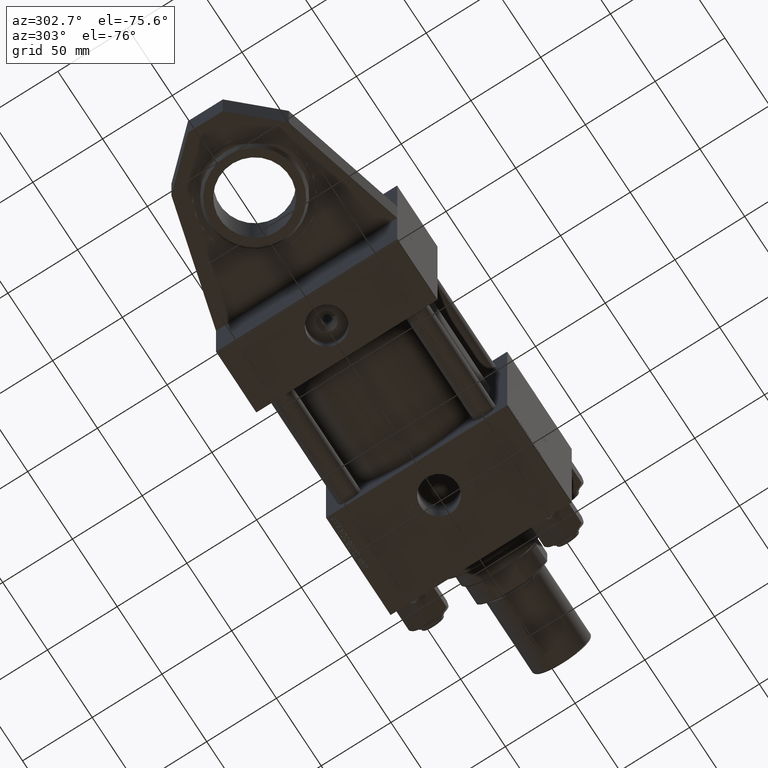
[diagram: clean part render]
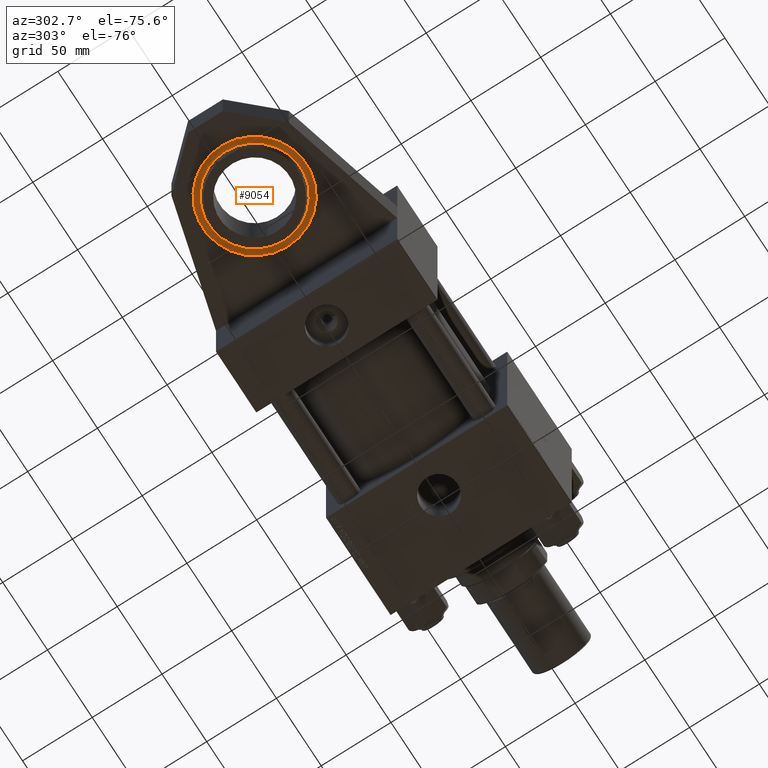
[diagram: same view with one face highlighted and labeled with its STEP entity id]
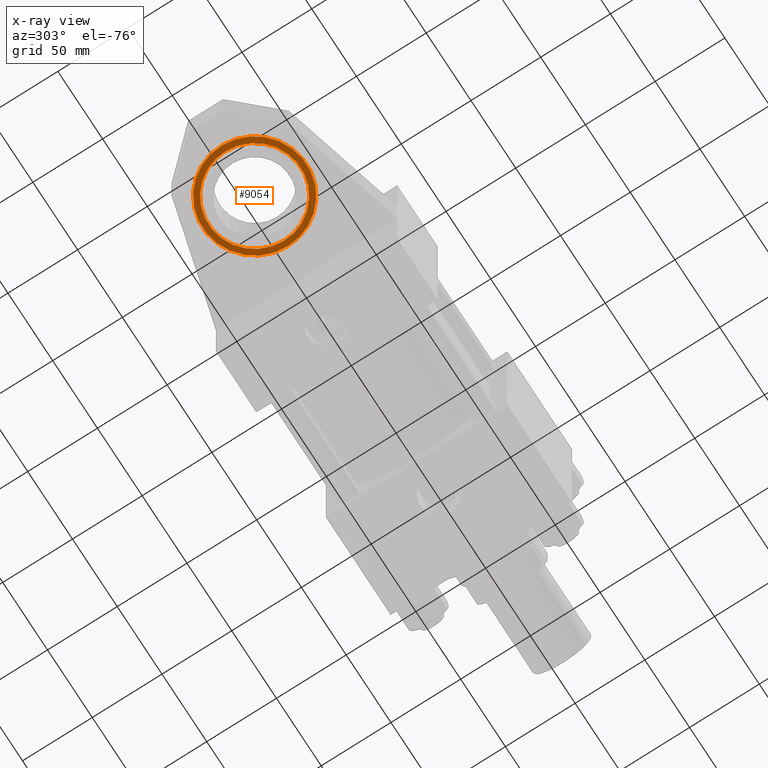
[diagram: x-ray of the same camera — body ghosted, the highlighted face saturated]
A machine part, auxiliary view. The second image highlights one B-rep face of the part: STEP entity #9054.
The next image is the same camera in x-ray: the body ghosted, the highlighted face saturated — about 0% of this face is hidden behind the body in this view.
In plain terms, the highlighted planar face has unit normal (0, 0, 1).
Its self-contained STEP definition (entity closure, byte-faithful):
#1743 = AXIS2_PLACEMENT_3D ( 'NONE', #40253, #52855, #44801 ) ;
#5433 = CARTESIAN_POINT ( 'NONE',  ( 0.000000000000000000, 37.50000000000000000, -13.99999999999999467 ) ) ;
#5506 = DIRECTION ( 'NONE',  ( 1.000000000000000000, 0.000000000000000000, 0.000000000000000000 ) ) ;
#9054 = ADVANCED_FACE ( 'NONE', ( #34746, #25897 ), #50596, .F. ) ;
#10340 = EDGE_CURVE ( 'NONE', #42210, #32942, #11346, .T. ) ;
#11346 = CIRCLE ( 'NONE', #16475, 33.00000000000000000 ) ;
#14819 = ORIENTED_EDGE ( 'NONE', *, *, #10340, .T. ) ;
#15087 = DIRECTION ( 'NONE',  ( 1.000000000000000000, 0.000000000000000000, 0.000000000000000000 ) ) ;
#15123 = AXIS2_PLACEMENT_3D ( 'NONE', #52029, #39416, #48278 ) ;
#16072 = CIRCLE ( 'NONE', #15123, 37.19999999999999574 ) ;
#16475 = AXIS2_PLACEMENT_3D ( 'NONE', #29995, #42359, #5506 ) ;
#19496 = CARTESIAN_POINT ( 'NONE',  ( -37.19999999999999574, 4.574055794815363937E-15, -13.99999999999999467 ) ) ;
#21854 = DIRECTION ( 'NONE',  ( 1.000000000000000000, 0.000000000000000000, 0.000000000000000000 ) ) ;
#22810 = EDGE_CURVE ( 'NONE', #42943, #42380, #16072, .T. ) ;
#22892 = AXIS2_PLACEMENT_3D ( 'NONE', #5433, #30455, #21854 ) ;
#25897 = FACE_BOUND ( 'NONE', #37453, .T. ) ;
#26999 = ORIENTED_EDGE ( 'NONE', *, *, #22810, .T. ) ;
#27158 = ORIENTED_EDGE ( 'NONE', *, *, #35807, .T. ) ;
#27998 = CARTESIAN_POINT ( 'NONE',  ( 0.000000000000000000, 0.000000000000000000, -13.99999999999999467 ) ) ;
#28104 = EDGE_LOOP ( 'NONE', ( #27158, #26999 ) ) ;
#29485 = EDGE_CURVE ( 'NONE', #32942, #42210, #33439, .T. ) ;
#29995 = CARTESIAN_POINT ( 'NONE',  ( 0.000000000000000000, 0.000000000000000000, -13.99999999999999467 ) ) ;
#30455 = DIRECTION ( 'NONE',  ( 0.000000000000000000, -0.000000000000000000, 1.000000000000000000 ) ) ;
#32739 = CIRCLE ( 'NONE', #1743, 37.19999999999999574 ) ;
#32942 = VERTEX_POINT ( 'NONE', #41197 ) ;
#33439 = CIRCLE ( 'NONE', #36010, 33.00000000000000000 ) ;
#34746 = FACE_OUTER_BOUND ( 'NONE', #28104, .T. ) ;
#35807 = EDGE_CURVE ( 'NONE', #42380, #42943, #32739, .T. ) ;
#36010 = AXIS2_PLACEMENT_3D ( 'NONE', #27998, #44388, #15087 ) ;
#37453 = EDGE_LOOP ( 'NONE', ( #41721, #14819 ) ) ;
#37526 = CARTESIAN_POINT ( 'NONE',  ( -33.00000000000000000, 4.041334437186266200E-15, -13.99999999999999467 ) ) ;
#39416 = DIRECTION ( 'NONE',  ( 0.000000000000000000, 0.000000000000000000, -1.000000000000000000 ) ) ;
#40253 = CARTESIAN_POINT ( 'NONE',  ( 0.000000000000000000, 0.000000000000000000, -13.99999999999999467 ) ) ;
#41197 = CARTESIAN_POINT ( 'NONE',  ( 33.00000000000000000, 0.000000000000000000, -13.99999999999999467 ) ) ;
#41721 = ORIENTED_EDGE ( 'NONE', *, *, #29485, .T. ) ;
#42210 = VERTEX_POINT ( 'NONE', #37526 ) ;
#42359 = DIRECTION ( 'NONE',  ( -0.000000000000000000, -0.000000000000000000, 1.000000000000000000 ) ) ;
#42380 = VERTEX_POINT ( 'NONE', #47446 ) ;
#42943 = VERTEX_POINT ( 'NONE', #19496 ) ;
#44388 = DIRECTION ( 'NONE',  ( -0.000000000000000000, -0.000000000000000000, 1.000000000000000000 ) ) ;
#44801 = DIRECTION ( 'NONE',  ( 1.000000000000000000, 0.000000000000000000, 0.000000000000000000 ) ) ;
#47446 = CARTESIAN_POINT ( 'NONE',  ( 37.19999999999999574, 0.000000000000000000, -13.99999999999999467 ) ) ;
#48278 = DIRECTION ( 'NONE',  ( 1.000000000000000000, 0.000000000000000000, 0.000000000000000000 ) ) ;
#50596 = PLANE ( 'NONE',  #22892 ) ;
#52029 = CARTESIAN_POINT ( 'NONE',  ( 0.000000000000000000, 0.000000000000000000, -13.99999999999999467 ) ) ;
#52855 = DIRECTION ( 'NONE',  ( 0.000000000000000000, 0.000000000000000000, -1.000000000000000000 ) ) ;